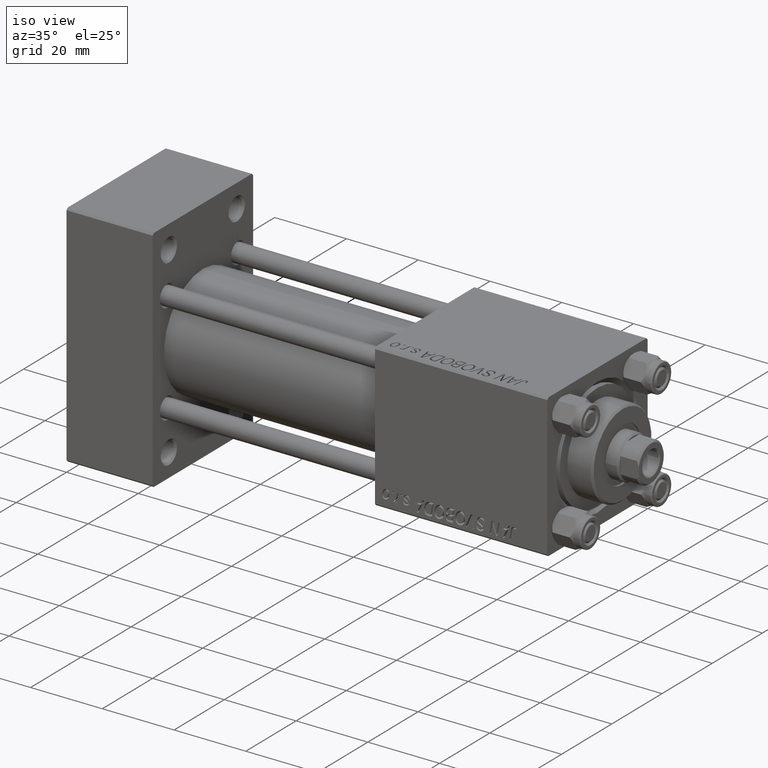
[diagram: clean part render]
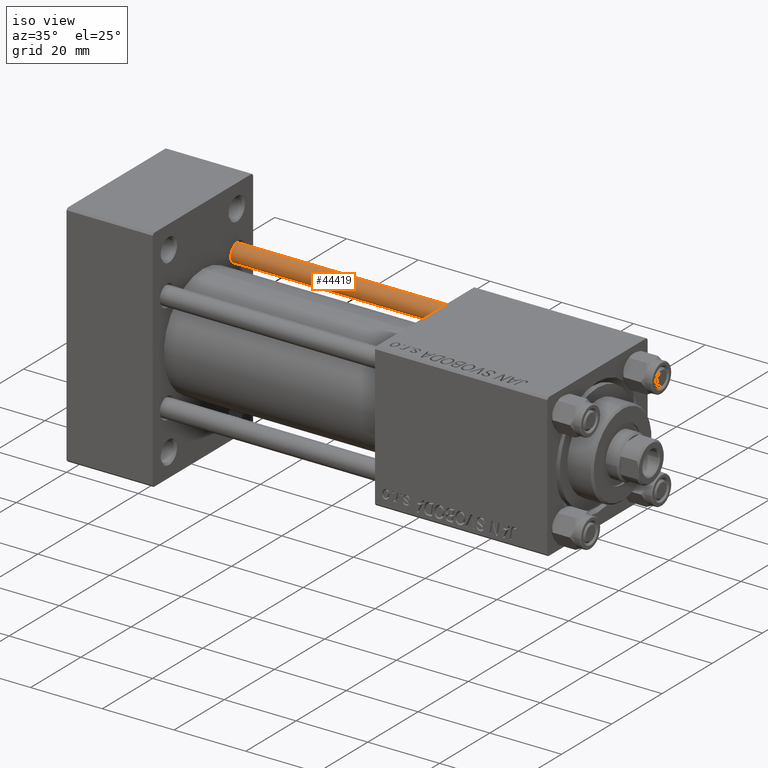
[diagram: same view with one face highlighted and labeled with its STEP entity id]
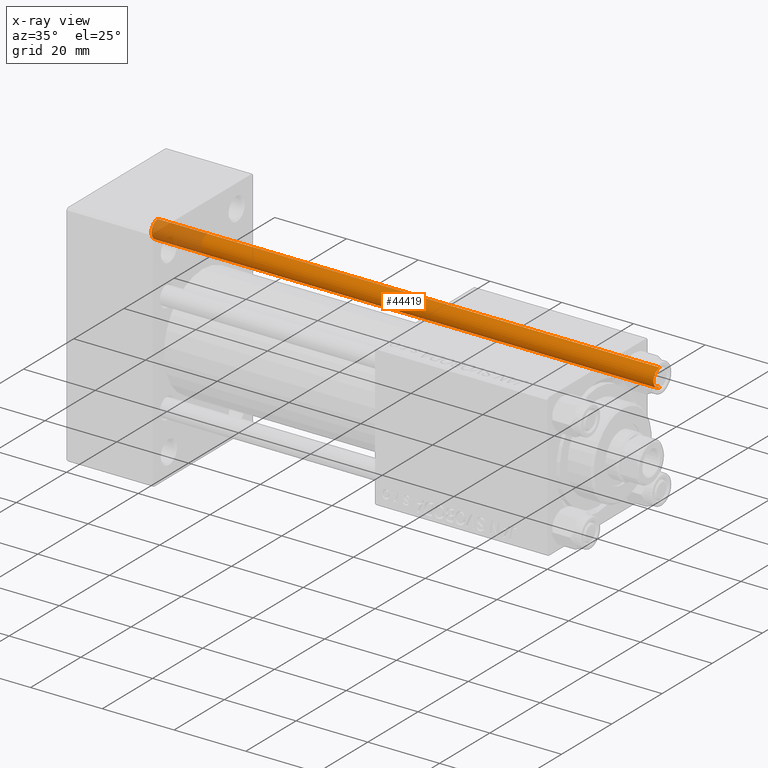
[diagram: x-ray of the same camera — body ghosted, the highlighted face saturated]
A machine part, iso view. The second image highlights one B-rep face of the part: STEP entity #44419.
The next image is the same camera in x-ray: the body ghosted, the highlighted face saturated — about 10% of this face is hidden behind the body in this view.
In plain terms, the highlighted cylindrical surface (edge-blend (fillet) strip) has radius 2.5 mm, axis along (1, 0, 0).
Its self-contained STEP definition (entity closure, byte-faithful):
#850 = CARTESIAN_POINT ( 'NONE',  ( -2.500000000000000000, 0.000000000000000000, 140.5000000000000000 ) ) ;
#1020 = EDGE_LOOP ( 'NONE', ( #22151, #28020, #30741, #1771 ) ) ;
#1771 = ORIENTED_EDGE ( 'NONE', *, *, #39789, .F. ) ;
#2751 = VERTEX_POINT ( 'NONE', #4794 ) ;
#2811 = VERTEX_POINT ( 'NONE', #21153 ) ;
#4794 = CARTESIAN_POINT ( 'NONE',  ( -2.500000000000000000, 0.000000000000000000, 0.5000000000000004441 ) ) ;
#9417 = DIRECTION ( 'NONE',  ( -0.000000000000000000, -0.000000000000000000, -1.000000000000000000 ) ) ;
#9463 = EDGE_CURVE ( 'NONE', #23118, #2811, #14487, .T. ) ;
#9654 = AXIS2_PLACEMENT_3D ( 'NONE', #42668, #27016, #26764 ) ;
#11294 = AXIS2_PLACEMENT_3D ( 'NONE', #28631, #16028, #43045 ) ;
#11954 = CARTESIAN_POINT ( 'NONE',  ( 0.000000000000000000, 0.000000000000000000, 141.0000000000000000 ) ) ;
#12849 = CIRCLE ( 'NONE', #9654, 2.500000000000000000 ) ;
#14094 = AXIS2_PLACEMENT_3D ( 'NONE', #11954, #23544, #19763 ) ;
#14487 = LINE ( 'NONE', #22290, #42353 ) ;
#15289 = CIRCLE ( 'NONE', #11294, 2.500000000000000000 ) ;
#15731 = FACE_OUTER_BOUND ( 'NONE', #1020, .T. ) ;
#16028 = DIRECTION ( 'NONE',  ( -0.000000000000000000, -0.000000000000000000, 1.000000000000000000 ) ) ;
#17209 = CARTESIAN_POINT ( 'NONE',  ( -2.500000000000000000, 0.000000000000000000, 141.0000000000000000 ) ) ;
#19763 = DIRECTION ( 'NONE',  ( -1.000000000000000000, 0.000000000000000000, 0.000000000000000000 ) ) ;
#21153 = CARTESIAN_POINT ( 'NONE',  ( 2.500000000000000000, 3.061616997868383141E-16, 0.5000000000000004441 ) ) ;
#22151 = ORIENTED_EDGE ( 'NONE', *, *, #30594, .T. ) ;
#22290 = CARTESIAN_POINT ( 'NONE',  ( 2.500000000000000000, 3.061616997868383141E-16, 141.0000000000000000 ) ) ;
#23118 = VERTEX_POINT ( 'NONE', #38856 ) ;
#23544 = DIRECTION ( 'NONE',  ( -0.000000000000000000, -0.000000000000000000, -1.000000000000000000 ) ) ;
#25121 = VECTOR ( 'NONE', #9417, 1000.000000000000000 ) ;
#26764 = DIRECTION ( 'NONE',  ( 1.000000000000000000, 0.000000000000000000, 0.000000000000000000 ) ) ;
#27016 = DIRECTION ( 'NONE',  ( 0.000000000000000000, 0.000000000000000000, -1.000000000000000000 ) ) ;
#28020 = ORIENTED_EDGE ( 'NONE', *, *, #9463, .T. ) ;
#28631 = CARTESIAN_POINT ( 'NONE',  ( 0.000000000000000000, 0.000000000000000000, 0.5000000000000004441 ) ) ;
#30594 = EDGE_CURVE ( 'NONE', #39700, #23118, #12849, .T. ) ;
#30741 = ORIENTED_EDGE ( 'NONE', *, *, #35472, .T. ) ;
#35472 = EDGE_CURVE ( 'NONE', #2811, #2751, #15289, .T. ) ;
#38856 = CARTESIAN_POINT ( 'NONE',  ( 2.500000000000000000, 3.061616997868383141E-16, 140.5000000000000000 ) ) ;
#39700 = VERTEX_POINT ( 'NONE', #850 ) ;
#39789 = EDGE_CURVE ( 'NONE', #39700, #2751, #48304, .T. ) ;
#42353 = VECTOR ( 'NONE', #45547, 1000.000000000000000 ) ;
#42668 = CARTESIAN_POINT ( 'NONE',  ( 0.000000000000000000, 0.000000000000000000, 140.5000000000000000 ) ) ;
#43045 = DIRECTION ( 'NONE',  ( 1.000000000000000000, 0.000000000000000000, 0.000000000000000000 ) ) ;
#44419 = ADVANCED_FACE ( 'NONE', ( #15731 ), #46808, .T. ) ;
#45547 = DIRECTION ( 'NONE',  ( -0.000000000000000000, -0.000000000000000000, -1.000000000000000000 ) ) ;
#46808 = CYLINDRICAL_SURFACE ( 'NONE', #14094, 2.500000000000000000 ) ;
#48304 = LINE ( 'NONE', #17209, #25121 ) ;